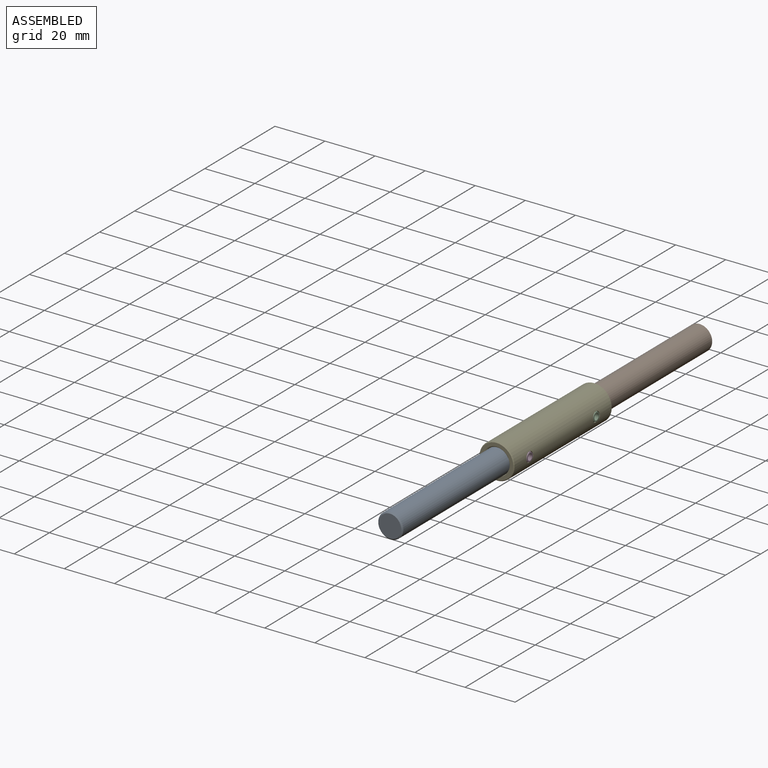
[diagram: assembled view]
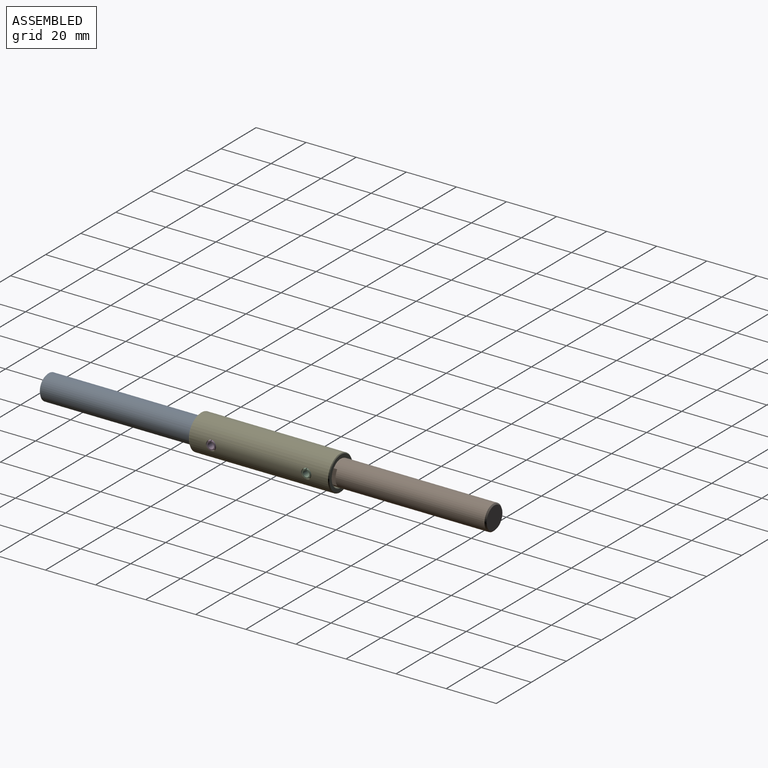
[diagram: assembled view, second angle]
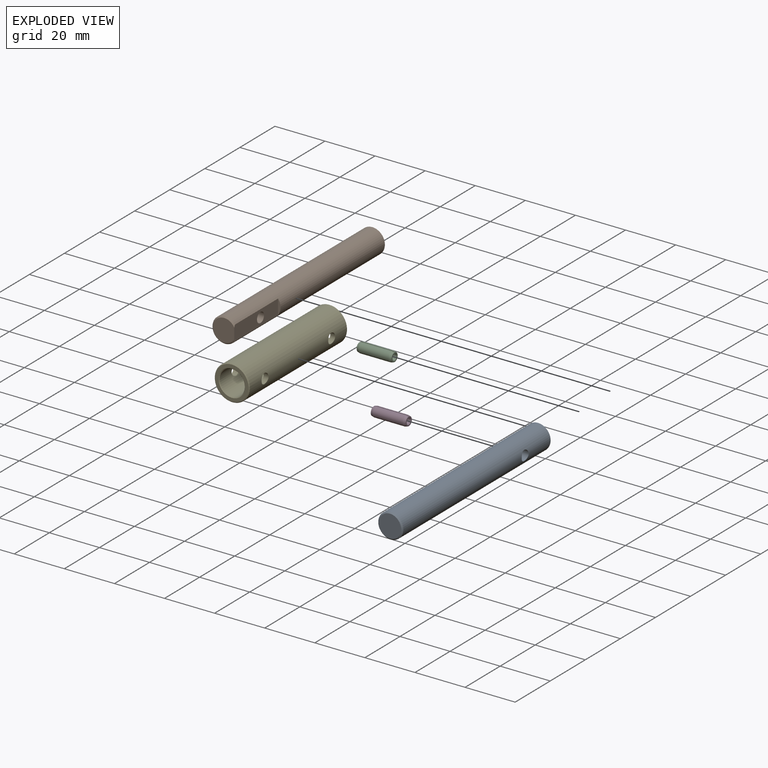
[diagram: exploded view]
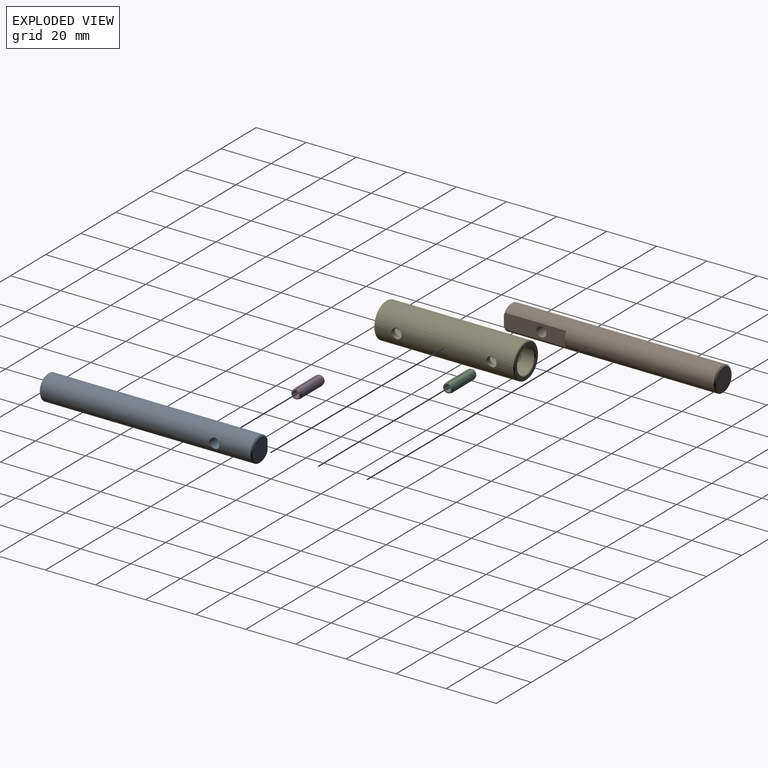
[diagram: exploded view, second angle]
ASSEMBLY  parts=5 mates=4
PART A: 8 faces, bbox 10x85x10 mm
  f0: plane 25x6mm, normal (0,0,1), area 137mm2, adj f1,f2,f4,f5,f7
  f1: cylinder r=5mm len=84mm, axis (0,1,0), area 2468.4mm2, adj f0,f4,f5,f6,f7
  f2: plane 9x8.5mm, normal (0,-1,0), area 62.2mm2, adj f0,f7
  f3: plane 9x9mm, normal (0,1,0), area 63.6mm2, adj f6
  f4: plane 6x1mm, normal (0,-1,0), area 4.1mm2, adj f0,f1
  f5: cylinder r=2mm len=9mm, axis (0,0,1), area 110.5mm2, adj f0,f1
  f6: cone r=5mm half-angle=45deg, axis (0,-1,0), area 21.1mm2, adj f1,f3
  f7: cone r=4.5mm half-angle=45deg, axis (0,1,0), area 17.3mm2, adj f0,f1,f2
PART B: same geometry as A
PART C: 8 faces, bbox 14x4x4 mm
  f0: plane 14x0.75mm, normal (0,1,0), area 10.3mm2, adj f1,f3,f4,f5,f6,f7
  f1: cylinder r=2mm len=12mm, axis (-1,0,0), area 147.8mm2, adj f0,f2,f6,f7
  f2: plane 14x0.75mm, normal (0,-1,0), area 10.3mm2, adj f1,f3,f4,f5,f6,f7
  f3: cylinder r=1.25mm len=14mm, axis (-1,0,0), area 106.4mm2, adj f0,f2,f4,f5
  f4: plane 3.46x3.46mm, normal (1,0,0), area 4.4mm2, adj f0,f2,f3,f7
  f5: plane 3.46x3.46mm, normal (-1,0,0), area 4.4mm2, adj f0,f2,f3,f6
  f6: cone r=2mm half-angle=15deg, axis (1,0,0), area 11.9mm2, adj f0,f1,f2,f5
  f7: cone r=1.73mm half-angle=15deg, axis (-1,0,0), area 11.9mm2, adj f0,f1,f2,f4
PART D: same geometry as C
PART E: 12 faces, bbox 14x56x14 mm
  f0: cylinder r=5mm len=55.4mm, axis (0,1,0), area 1689.1mm2, adj f4,f5,f6,f7,f8,f10
  f1: cylinder r=7mm len=55.4mm, axis (0,1,0), area 2385.8mm2, adj f4,f5,f6,f7,f9,f11
  f2: plane 13.4x13.4mm, normal (0,-1,0), area 52.8mm2, adj f10,f11
  f3: plane 13.4x13.4mm, normal (0,1,0), area 52.8mm2, adj f8,f9
  f4: cylinder r=2mm len=4mm, axis (1,0,0), area 25.9mm2, adj f0,f1
  f5: cylinder r=2mm len=4mm, axis (1,0,0), area 25.9mm2, adj f0,f1
  f6: cylinder r=2mm len=4mm, axis (1,0,0), area 25.9mm2, adj f0,f1
  f7: cylinder r=2mm len=4mm, axis (1,0,0), area 25.9mm2, adj f0,f1
  f8: cone r=5.3mm half-angle=45deg, axis (0,1,0), area 13.7mm2, adj f0,f3
  f9: cone r=7mm half-angle=45deg, axis (0,-1,0), area 18.3mm2, adj f1,f3
  f10: cone r=5mm half-angle=45deg, axis (0,-1,0), area 13.7mm2, adj f0,f2
  f11: cone r=6.7mm half-angle=45deg, axis (0,1,0), area 18.3mm2, adj f1,f2
PLACE A rot(axis=(0.71,0,-0.71),180deg) t=(0.26,-28.95,-0.03)mm
PLACE B rot(axis=(0,1,0),90deg) t=(-0.34,29.05,-0.03)mm
PLACE C t=(0.13,38.26,-0.03)mm
PLACE D t=(0.19,0.26,-0.03)mm
PLACE E t=(0.11,0.05,-0.03)mm fixed
MATE fastened A.f5 <-> D.f1  axis (-1,0,0) through (0.79,-18.95,-0.03)mm
MATE fastened A.f5 <-> E.f4  axis (-1,0,0) through (5.32,-18.95,-0.03)mm
MATE fastened B.f5 <-> E.f6  axis (1,0,0) through (-0.87,19.05,-0.03)mm
MATE fastened B.f5 <-> C.f1  axis (1,0,0) through (-0.87,19.05,-0.03)mm
